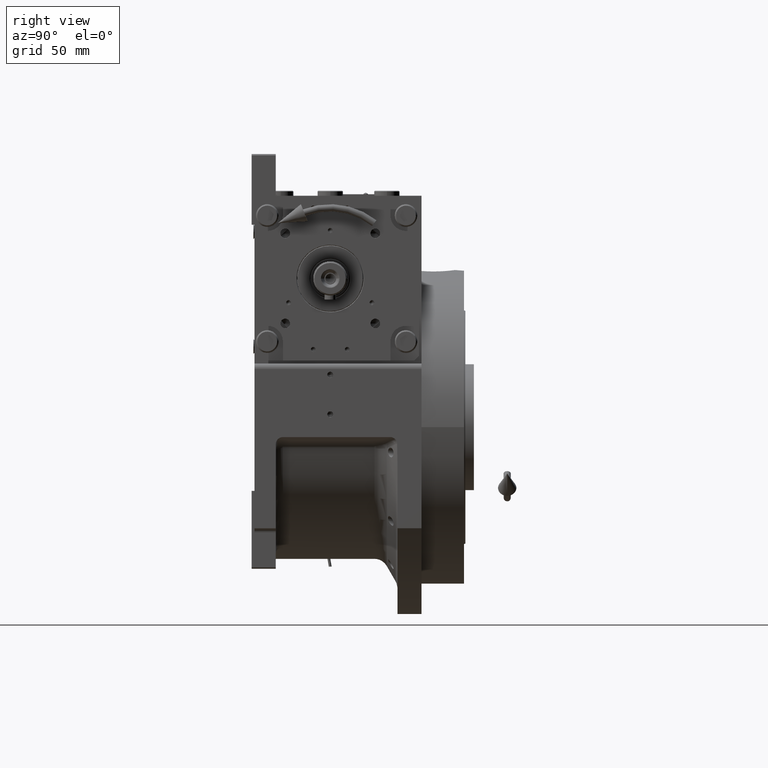
[diagram: clean part render]
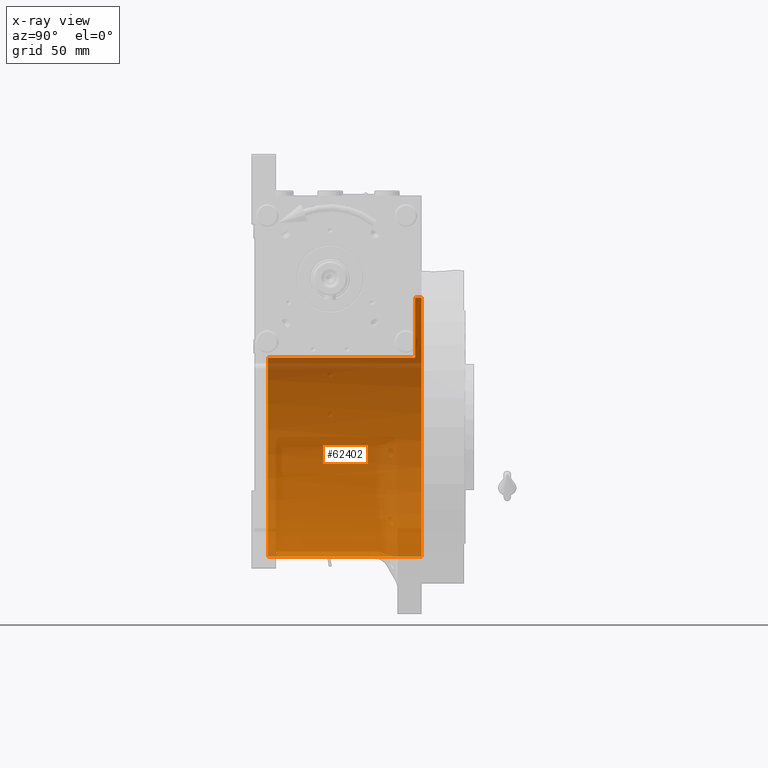
[diagram: x-ray — body ghosted, one internal face saturated and labeled with its STEP entity id]
A machine part, right view, then the same camera in x-ray: the body is ghosted and one INTERNAL B-rep face — a face not visible from any outside direction — is saturated and labeled: STEP entity #62402.
In plain terms, the highlighted cylindrical surface (partial cylindrical patch) has radius 91.5 mm, axis along (0, -1, 0).
Its self-contained STEP definition (entity closure, byte-faithful):
#778 = ORIENTED_EDGE ( 'NONE', *, *, #46501, .F. ) ;
#1772 = VECTOR ( 'NONE', #4479, 1000.000000000000000 ) ;
#3089 = CARTESIAN_POINT ( 'NONE',  ( 0.000000000000000000, -44.00000000000000000, -91.50000000000000000 ) ) ;
#4479 = DIRECTION ( 'NONE',  ( 0.000000000000000000, -1.000000000000000000, 0.000000000000000000 ) ) ;
#4623 = DIRECTION ( 'NONE',  ( 0.000000000000000000, -1.000000000000000000, 0.000000000000000000 ) ) ;
#4737 = CARTESIAN_POINT ( 'NONE',  ( 0.000000000000000000, 64.50000000000000000, -91.50000000000000000 ) ) ;
#5995 = LINE ( 'NONE', #63728, #74091 ) ;
#9726 = EDGE_CURVE ( 'NONE', #14105, #38263, #5995, .T. ) ;
#11298 = DIRECTION ( 'NONE',  ( -0.000000000000000000, 1.000000000000000000, -0.000000000000000000 ) ) ;
#11301 = CARTESIAN_POINT ( 'NONE',  ( 0.000000000000000000, -44.00000000000000000, 0.000000000000000000 ) ) ;
#14105 = VERTEX_POINT ( 'NONE', #63333 ) ;
#15505 = CARTESIAN_POINT ( 'NONE',  ( -77.27386362800814368, 60.00000000000000000, 48.99999999999998579 ) ) ;
#16629 = DIRECTION ( 'NONE',  ( 0.000000000000000000, 0.000000000000000000, 1.000000000000000000 ) ) ;
#16995 = DIRECTION ( 'NONE',  ( 0.000000000000000000, 1.000000000000000000, 0.000000000000000000 ) ) ;
#17928 = DIRECTION ( 'NONE',  ( -0.000000000000000000, -1.000000000000000000, -0.000000000000000000 ) ) ;
#20278 = ORIENTED_EDGE ( 'NONE', *, *, #55196, .F. ) ;
#23216 = LINE ( 'NONE', #44890, #46370 ) ;
#25176 = FACE_OUTER_BOUND ( 'NONE', #36625, .T. ) ;
#25236 = VERTEX_POINT ( 'NONE', #74048 ) ;
#25541 = CARTESIAN_POINT ( 'NONE',  ( 0.000000000000000000, 69.00000000000004263, 0.000000000000000000 ) ) ;
#28168 = DIRECTION ( 'NONE',  ( 0.000000000000000000, 0.000000000000000000, -1.000000000000000000 ) ) ;
#28863 = CARTESIAN_POINT ( 'NONE',  ( 0.000000000000000000, 60.00000000000000000, 0.000000000000000000 ) ) ;
#29591 = DIRECTION ( 'NONE',  ( 1.776356839400250465E-15, 0.000000000000000000, -1.000000000000000000 ) ) ;
#32084 = CIRCLE ( 'NONE', #40614, 91.50000000000000000 ) ;
#33360 = LINE ( 'NONE', #56543, #1772 ) ;
#35192 = ORIENTED_EDGE ( 'NONE', *, *, #9726, .F. ) ;
#35820 = VERTEX_POINT ( 'NONE', #4737 ) ;
#36625 = EDGE_LOOP ( 'NONE', ( #37524, #66267, #20278, #35192, #71319, #778 ) ) ;
#37524 = ORIENTED_EDGE ( 'NONE', *, *, #59110, .F. ) ;
#38263 = VERTEX_POINT ( 'NONE', #15505 ) ;
#38544 = AXIS2_PLACEMENT_3D ( 'NONE', #64663, #17928, #41125 ) ;
#40332 = DIRECTION ( 'NONE',  ( 0.000000000000000000, -1.000000000000000000, 0.000000000000000000 ) ) ;
#40377 = VERTEX_POINT ( 'NONE', #3089 ) ;
#40614 = AXIS2_PLACEMENT_3D ( 'NONE', #28863, #51648, #29591 ) ;
#41125 = DIRECTION ( 'NONE',  ( 0.000000000000000000, 0.000000000000000000, 1.000000000000000000 ) ) ;
#43524 = AXIS2_PLACEMENT_3D ( 'NONE', #11301, #16995, #16629 ) ;
#44890 = CARTESIAN_POINT ( 'NONE',  ( 1.120551821219827868E-14, 69.00000000000004263, 91.50000000000000000 ) ) ;
#46370 = VECTOR ( 'NONE', #40332, 1000.000000000000000 ) ;
#46501 = EDGE_CURVE ( 'NONE', #35820, #40377, #33360, .T. ) ;
#47055 = CIRCLE ( 'NONE', #38544, 91.50000000000000000 ) ;
#48358 = CYLINDRICAL_SURFACE ( 'NONE', #48455, 91.50000000000000000 ) ;
#48455 = AXIS2_PLACEMENT_3D ( 'NONE', #25541, #4623, #28168 ) ;
#50442 = EDGE_CURVE ( 'NONE', #55238, #25236, #23216, .T. ) ;
#51648 = DIRECTION ( 'NONE',  ( 0.000000000000000000, 1.000000000000000000, 0.000000000000000000 ) ) ;
#52026 = CARTESIAN_POINT ( 'NONE',  ( 1.120551821219827868E-14, 64.50000000000000000, 91.50000000000000000 ) ) ;
#55196 = EDGE_CURVE ( 'NONE', #38263, #25236, #32084, .T. ) ;
#55238 = VERTEX_POINT ( 'NONE', #52026 ) ;
#56543 = CARTESIAN_POINT ( 'NONE',  ( 0.000000000000000000, 69.00000000000004263, -91.50000000000000000 ) ) ;
#56883 = CIRCLE ( 'NONE', #43524, 91.50000000000000000 ) ;
#59110 = EDGE_CURVE ( 'NONE', #55238, #35820, #47055, .T. ) ;
#60000 = EDGE_CURVE ( 'NONE', #40377, #14105, #56883, .T. ) ;
#62402 = ADVANCED_FACE ( 'NONE', ( #25176 ), #48358, .F. ) ;
#63333 = CARTESIAN_POINT ( 'NONE',  ( -77.27386362800814368, -44.00000000000000000, 49.00000000000000000 ) ) ;
#63728 = CARTESIAN_POINT ( 'NONE',  ( -77.27386362800812947, 69.00000000000004263, 48.99999999999998579 ) ) ;
#64663 = CARTESIAN_POINT ( 'NONE',  ( 0.000000000000000000, 64.50000000000000000, 0.000000000000000000 ) ) ;
#66267 = ORIENTED_EDGE ( 'NONE', *, *, #50442, .T. ) ;
#71319 = ORIENTED_EDGE ( 'NONE', *, *, #60000, .F. ) ;
#74048 = CARTESIAN_POINT ( 'NONE',  ( 1.120551821219827868E-14, 60.00000000000000000, 91.50000000000000000 ) ) ;
#74091 = VECTOR ( 'NONE', #11298, 1000.000000000000000 ) ;